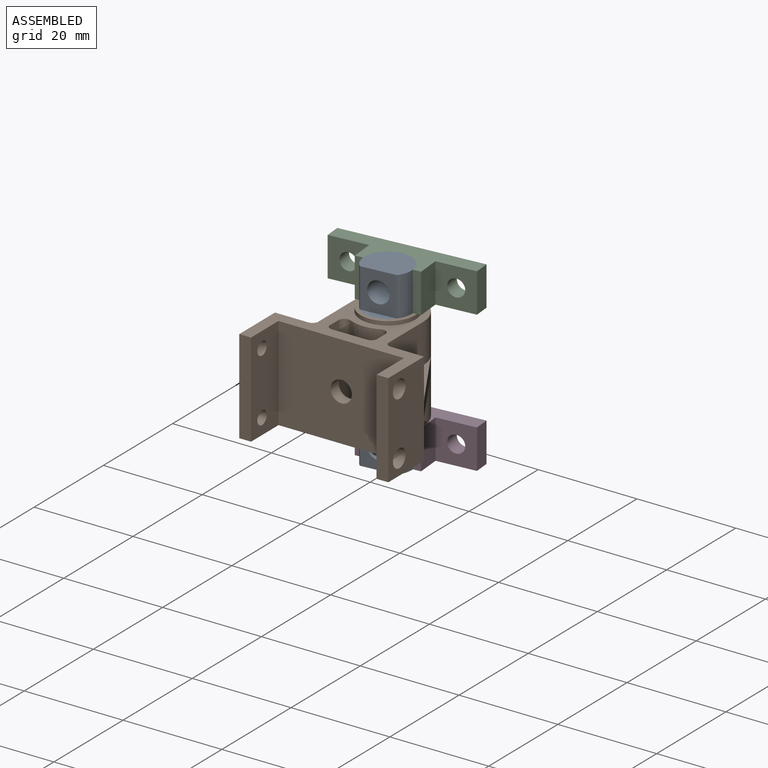
[diagram: assembled view]
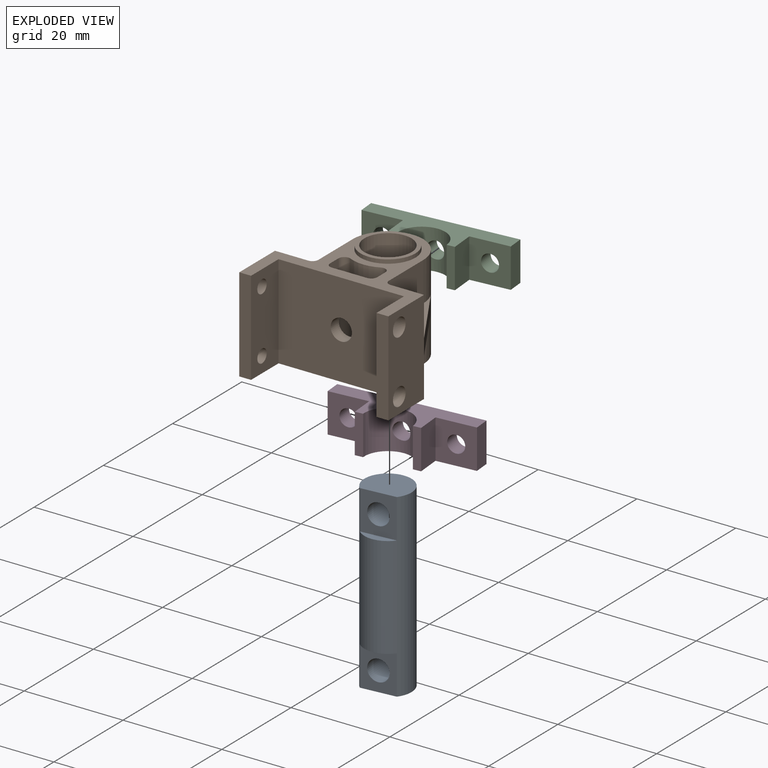
[diagram: exploded view]
GUIDED TOUR — MATED ASSEMBLY (Onshape document 30d36e8006467c0f0e39ad6a, AutoMate assembly 30d36e8006467c0f0e39ad6a_4de7a1119da5afe038f32a44_f86c3260d5e4aba58fe778c5_default)

This assembly has 4 components, labeled P0..P3 below (a component is one placed occurrence of a part; the same part can appear more than once), held together by 6 mates. A mate is a constraint between two components; its type names the relative motion it leaves free:
  CYLINDRICAL — leaves both rotation about and translation along the listed axis free,
  PLANAR — leaves sliding in the plane through the listed point (normal = the listed direction) and rotation about that normal free.
Axis/direction vectors are unit vectors and 'through' points are millimeter coordinates, both in the assembly's world frame.

MATES
  1. CYLINDRICAL "Cylindrical 2": P3 <-> P0, axis (-0.087, 0.996, 0.000) through (8.62, 1.10, 0.53) mm
  2. CYLINDRICAL "Cylindrical 5": P1 <-> P0, axis (0.000, 0.000, -1.000) through (9.15, -5.05, 4.50) mm
  3. CYLINDRICAL "Cylindrical 1": P0 <-> P3, axis (0.000, 0.000, -1.000) through (9.15, -5.05, 14.81) mm
  4. CYLINDRICAL "Cylindrical 4": P0 <-> P2, axis (0.000, 0.000, -1.000) through (9.15, -5.05, 14.81) mm
  5. CYLINDRICAL "Cylindrical 3": P2 <-> P0, axis (-0.087, 0.996, 0.000) through (8.62, 1.10, 29.10) mm
  6. PLANAR "Planar 1": P1 <-> P3, direction (0.000, 0.000, -1.000) through (9.15, -5.05, 4.50) mm

ASSEMBLY ORDER
  1. P3 — the base component [order verified]
  2. P1 [order verified]
  3. P2 [order verified]
  4. P0 [order verified]
Order-tag legend:
  [order verified] — this step's position reverses a verified removal order: the component was checked to insert without passing through the ones already placed.

Of the 4 components, 4 carry the full construction recipe — the FeatureScript program that regenerates the part's solid from scratch; the rest are supplied as boundary geometry only.
Each toured component is shown spotlighted twice — in the assembled view, then in the exploded view, where a leader line traces a displaced component back to its assembled socket (saturated green if recipe-attached, orange if geometry-only; every other component desaturated gray) — followed by its recipe or geometry summary and the mates that hold it.
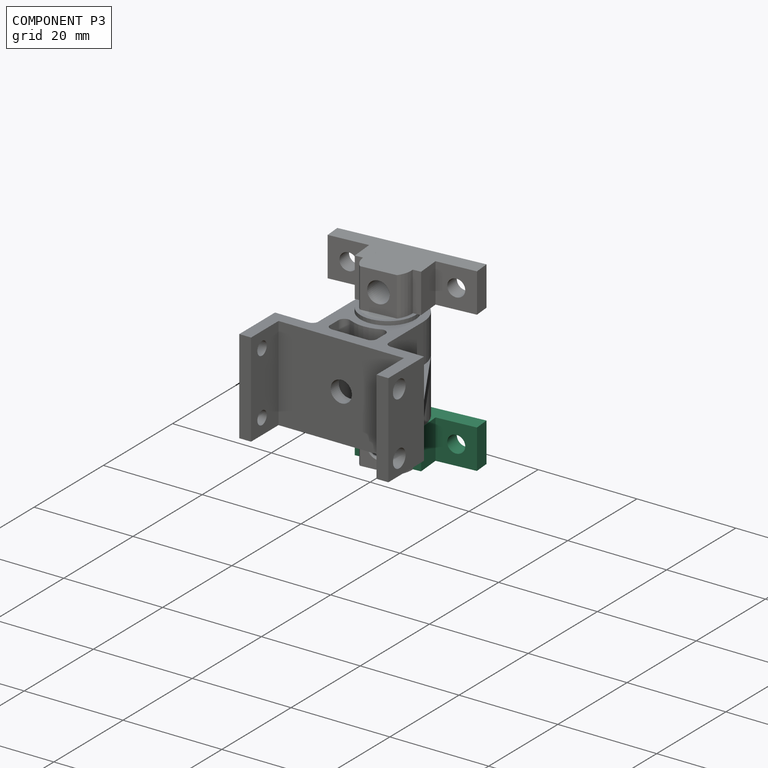
[diagram: component P3 — assembled]
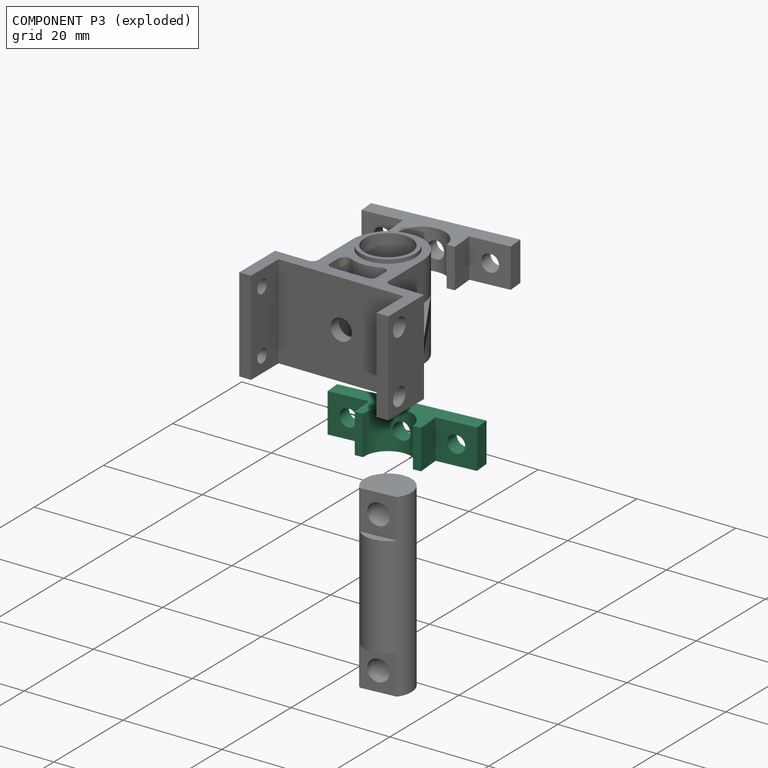
[diagram: component P3 — exploded]
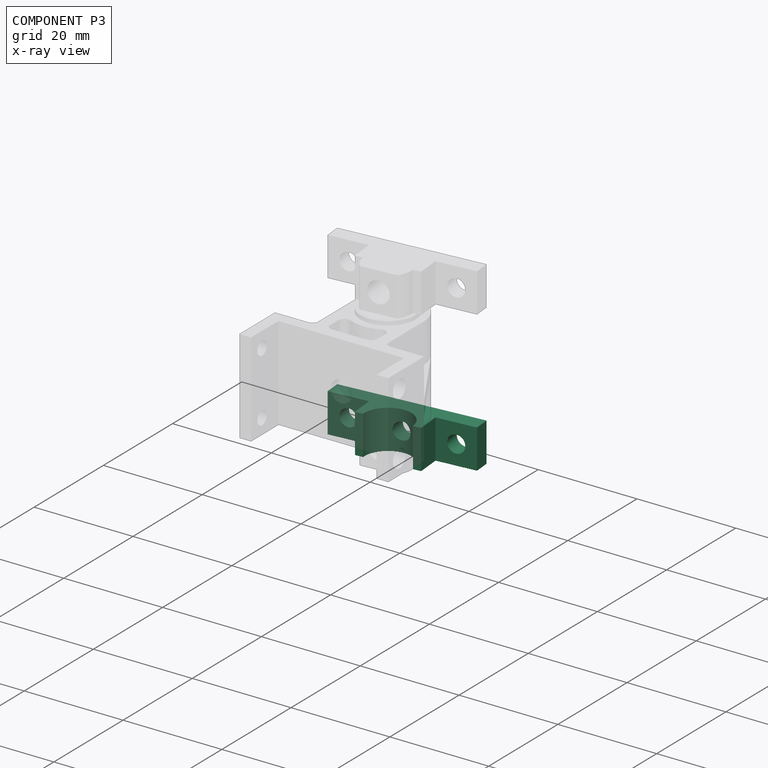
[diagram: component P3 — x-ray view]
COMPONENT P3 — same part as P2 (CADFS 00164834); its construction recipe is shown at P2.
Held by: CYLINDRICAL mate "Cylindrical 2" to P0; CYLINDRICAL mate "Cylindrical 1" to P0; PLANAR mate "Planar 1" to P1.
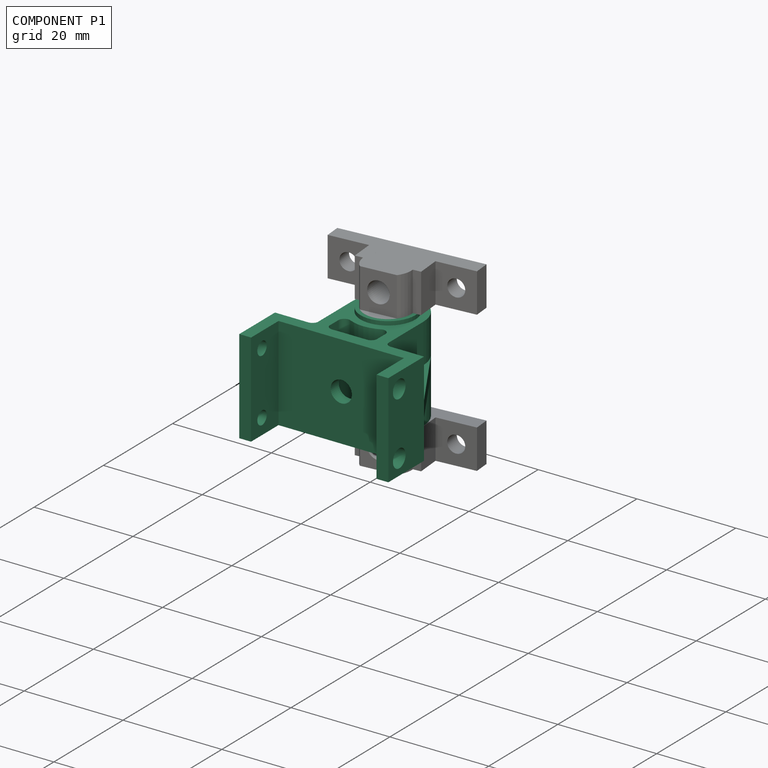
[diagram: component P1 — assembled]
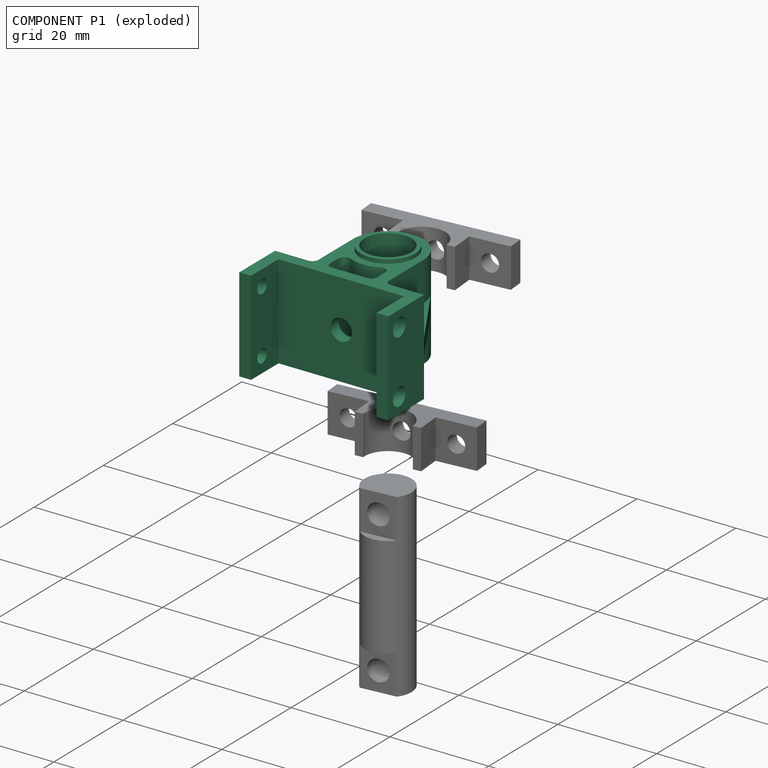
[diagram: component P1 — exploded]
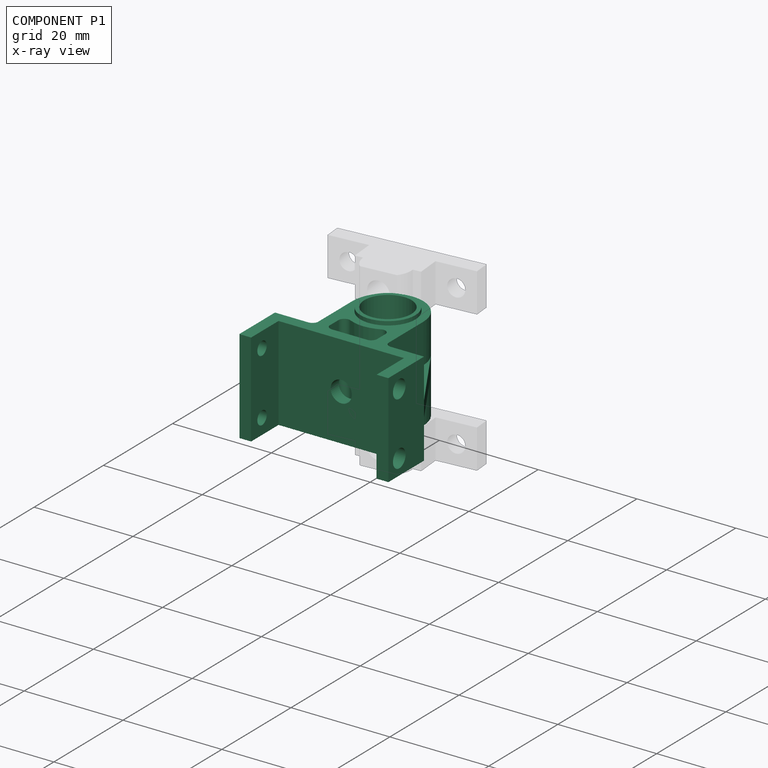
[diagram: component P1 — x-ray view]
COMPONENT P1 — recipe-attached (CADFS 00164830, mesh-verified: the recipe's output STEP matches this component's geometry to below the mesh-comparison resolution (tessellation chordal tolerance ~0.0696 mm)).
Held by: CYLINDRICAL mate "Cylindrical 5" to P0; PLANAR mate "Planar 1" to P3.
Construction recipe (FeatureScript — the CAD program that rebuilds this solid; sketch coordinates are in the units given by the * unit suffixes, e.g. mm):

FeatureScript 1511;
import(path : "onshape/std/geometry.fs", version : "1511.0");
import(path : "onshape/std/common.fs", version : "1511.0");
const mm = millimeter;
const VERTEX = EntityType.VERTEX;
const EDGE = EntityType.EDGE;
const FACE = EntityType.FACE;
const BODY = EntityType.BODY;
function v(x, y){return vector(x, y);}
function OD(order){return orderDisambiguation(order);}
function OSD(set){return originalSetDisambiguation(set);}
function TD(topology){return topologyDisambiguation(topology);}
function TDD(query){return trueDependencyDisambiguation(query);}
function sQuery(a, b, c) {return sketchEntityQuery(a, b, c);}

annotation { "Feature Type Name" : "Feature", "Feature Type Description" : "" }
export const myFeature = defineFeature(function(context is Context, id is Id, definition is map)
    precondition{}
    {
        {
            var Q0;
            Q0=qCreatedBy(makeId("Top.planeOp"),FACE);
            var sketch = newSketch(context, id + "F0", { "sketchPlane" : qUnion([Q0])});
            skArc(sketch, "E0", {"start": v(7.14, 0) * mm, "mid": v(0, 7.14) * mm, "end": v(-7.14, 0) * mm});
            skCircle(sketch, "E1", {"center": v(0, 0) * mm, "radius": 4.76 * mm});
            skLineSegment(sketch, "E2.bottom", {"start": v(12.7, -21.43) * mm, "end": v(-12.7, -21.43) * mm, "construction": true});
            skLineSegment(sketch, "E2.top", {"start": v(12.7, -13.5) * mm, "end": v(-12.7, -13.5) * mm});
            skLineSegment(sketch, "E2.left", {"start": v(12.7, -21.43) * mm, "end": v(12.7, -13.5) * mm});
            skLineSegment(sketch, "E2.right", {"start": v(-12.7, -21.43) * mm, "end": v(-12.7, -13.5) * mm});
            skLineSegment(sketch, "E3", {"start": v(12.7, -21.43) * mm, "end": v(15.08, -21.43) * mm});
            skLineSegment(sketch, "E4", {"start": v(-12.7, -21.43) * mm, "end": v(-15.08, -21.43) * mm});
            skLineSegment(sketch, "E5", {"start": v(-15.08, -21.43) * mm, "end": v(-15.08, -11.11) * mm});
            skLineSegment(sketch, "E6", {"start": v(15.08, -21.43) * mm, "end": v(15.08, -11.11) * mm});
            skLineSegment(sketch, "E7", {"start": v(-15.08, -11.11) * mm, "end": v(-7.14, -11.11) * mm});
            skLineSegment(sketch, "E8", {"start": v(-7.14, -11.11) * mm, "end": v(-7.14, 0) * mm});
            skLineSegment(sketch, "E9", {"start": v(15.08, -11.11) * mm, "end": v(7.14, -11.11) * mm});
            skLineSegment(sketch, "E10", {"start": v(7.14, -11.11) * mm, "end": v(7.14, 0) * mm});
            skLineSegment(sketch, "E11", {"start": v(-7.14, 0) * mm, "end": v(7.14, 0) * mm, "construction": true});
            skLineSegment(sketch, "E12", {"start": v(-7.14, -11.11) * mm, "end": v(7.14, -11.11) * mm, "construction": true});
            skLineSegment(sketch, "E13", {"start": v(0, -11.11) * mm, "end": v(0, -13.5) * mm, "construction": true});
            skSolve(sketch);
        }
        {
            var Q0;
            Q0=qSketchRegion(id+"F0",true);
            extrude(context, id + "F1", {"entities" : qUnion([Q0]), "depth" : 19.05 * mm});
        }
        {
            var Q0;
            Q0=makeQuery(id+"F1.opExtrude","SWEPT_FACE",FACE,{"disambiguationData":[OSD([sQuery(id+"F0.wireOp",EDGE,"E6")])]});
            var sketch = newSketch(context, id + "F2", { "sketchPlane" : qUnion([Q0])});
            skLineSegment(sketch, "E14.bottom", {"start": v(-21.43, 19.05) * mm, "end": v(-18.26, 19.05) * mm, "construction": true});
            skLineSegment(sketch, "E14.top", {"start": v(-21.43, 15.88) * mm, "end": v(-18.26, 15.88) * mm, "construction": true});
            skLineSegment(sketch, "E14.left", {"start": v(-21.43, 19.05) * mm, "end": v(-21.43, 15.88) * mm, "construction": true});
            skLineSegment(sketch, "E14.right", {"start": v(-18.26, 19.05) * mm, "end": v(-18.26, 15.88) * mm, "construction": true});
            skLineSegment(sketch, "E15.bottom", {"start": v(-21.43, 0) * mm, "end": v(-18.26, 0) * mm, "construction": true});
            skLineSegment(sketch, "E15.top", {"start": v(-21.43, 3.18) * mm, "end": v(-18.26, 3.18) * mm, "construction": true});
            skLineSegment(sketch, "E15.left", {"start": v(-21.43, 0) * mm, "end": v(-21.43, 3.18) * mm, "construction": true});
            skLineSegment(sketch, "E15.right", {"start": v(-18.26, 0) * mm, "end": v(-18.26, 3.18) * mm, "construction": true});
            skCircle(sketch, "E16", {"center": v(-18.26, 15.88) * mm, "radius": 1.83 * mm});
            skCircle(sketch, "E17", {"center": v(-18.26, 3.18) * mm, "radius": 1.83 * mm});
            skSolve(sketch);
        }
        {
            var Q0;
            Q0=qSketchRegion(id+"F2",true);
            var Q1;
            Q1=makeQuery(id+"F1.opExtrude","SWEPT_FACE",FACE,{"disambiguationData":[OSD([sQuery(id+"F0.wireOp",EDGE,"E2.left")])]});
            extrude(context, id + "F3", {"entities" : qUnion([Q0]), "operationType" : NewBodyOperationType.REMOVE, "endBound" : BoundingType.UP_TO_SURFACE, "oppositeDirection" : true, "endBoundEntityFace" : qUnion([Q1]), "depth" : 25.4 * mm});
        }
        {
            var Q0;
            Q0=makeQuery(id+"F1.opExtrude","SWEPT_FACE",FACE,{"disambiguationData":[OSD([sQuery(id+"F0.wireOp",EDGE,"E5")])]});
            var sketch = newSketch(context, id + "F4", { "sketchPlane" : qUnion([Q0])});
            skCircle(sketch, "E18", {"center": v(18.26, 3.18) * mm, "radius": 1.35 * mm});
            skCircle(sketch, "E19", {"center": v(18.26, 15.88) * mm, "radius": 1.35 * mm});
            skSolve(sketch);
        }
        {
            var Q0;
            Q0=qSketchRegion(id+"F4",true);
            var Q1;
            Q1=makeQuery(id+"F1.opExtrude","SWEPT_FACE",FACE,{"disambiguationData":[OSD([sQuery(id+"F0.wireOp",EDGE,"E2.right")])]});
            extrude(context, id + "F5", {"entities" : qUnion([Q0]), "operationType" : NewBodyOperationType.REMOVE, "endBound" : BoundingType.UP_TO_SURFACE, "oppositeDirection" : true, "endBoundEntityFace" : qUnion([Q1]), "depth" : 25.4 * mm});
        }
        {
            var Q0;
            Q0=makeQuery(id+"F1.opExtrude","CAP_FACE",FACE,{"disambiguationData":[OSD([sQuery(id+"F0.wireOp",EDGE,"E0"),sQuery(id+"F0.wireOp",EDGE,"E1"),sQuery(id+"F0.wireOp",EDGE,"E2.top"),sQuery(id+"F0.wireOp",EDGE,"E2.left"),sQuery(id+"F0.wireOp",EDGE,"E2.right"),sQuery(id+"F0.wireOp",EDGE,"E3"),sQuery(id+"F0.wireOp",EDGE,"E4"),sQuery(id+"F0.wireOp",EDGE,"E5"),sQuery(id+"F0.wireOp",EDGE,"E6"),sQuery(id+"F0.wireOp",EDGE,"E7"),sQuery(id+"F0.wireOp",EDGE,"E8"),sQuery(id+"F0.wireOp",EDGE,"E9"),sQuery(id+"F0.wireOp",EDGE,"E10")])],"isStart":true});
            cPlane(context, id + "F6", {"entities" : qUnion([Q0]), "cplaneType" : CPlaneType.OFFSET, "offset" : 9.52 * mm, "oppositeDirection" : true, "width" : 152.4 * mm, "height" : 152.4 * mm});
        }
        {
            var Q0;
            Q0=qCreatedBy(id+"F6.planeOp",FACE);
            var sketch = newSketch(context, id + "F7", { "sketchPlane" : qUnion([Q0])});
            skLineSegment(sketch, "E20", {"start": v(-6.11, -3.7) * mm, "end": v(-15.08, 11.11) * mm});
            skArc(sketch, "E21", {"start": v(-7.14, 0) * mm, "mid": v(-6.88, -1.92) * mm, "end": v(-6.11, -3.7) * mm});
            skLineSegment(sketch, "E22", {"start": v(-7.14, 0) * mm, "end": v(-7.14, 11.11) * mm});
            skLineSegment(sketch, "E23", {"start": v(-7.14, 11.11) * mm, "end": v(-15.08, 11.11) * mm});
            skArc(sketch, "E24", {"start": v(6.11, -3.7) * mm, "mid": v(6.88, -1.92) * mm, "end": v(7.14, 0) * mm});
            skLineSegment(sketch, "E25", {"start": v(7.14, 0) * mm, "end": v(7.14, 11.11) * mm});
            skLineSegment(sketch, "E26", {"start": v(7.14, 11.11) * mm, "end": v(15.08, 11.11) * mm});
            skLineSegment(sketch, "E27", {"start": v(15.08, 11.11) * mm, "end": v(6.11, -3.7) * mm});
            skSolve(sketch);
        }
        {
            var Q0;
            Q0 = qSketchRegion(id + "F7", true);
            extrude(context, id + "F8", {"entities" : qUnion([Q0]), "operationType" : NewBodyOperationType.ADD, "endBound" : BoundingType.SYMMETRIC, "depth" : 3.17 * mm});
        }
        {
            var Q0;
            Q0=makeQuery(id+"F1.opExtrude","CAP_FACE",FACE,{"disambiguationData":[OSD([sQuery(id+"F0.wireOp",EDGE,"E0"),sQuery(id+"F0.wireOp",EDGE,"E1"),sQuery(id+"F0.wireOp",EDGE,"E2.top"),sQuery(id+"F0.wireOp",EDGE,"E2.left"),sQuery(id+"F0.wireOp",EDGE,"E2.right"),sQuery(id+"F0.wireOp",EDGE,"E3"),sQuery(id+"F0.wireOp",EDGE,"E4"),sQuery(id+"F0.wireOp",EDGE,"E5"),sQuery(id+"F0.wireOp",EDGE,"E6"),sQuery(id+"F0.wireOp",EDGE,"E7"),sQuery(id+"F0.wireOp",EDGE,"E8"),sQuery(id+"F0.wireOp",EDGE,"E9"),sQuery(id+"F0.wireOp",EDGE,"E10")])],"isStart":true});
            var sketch = newSketch(context, id + "F9", { "sketchPlane" : qUnion([Q0])});
            skCircle(sketch, "E28", {"center": v(0, 0) * mm, "radius": 4.76 * mm});
            skCircle(sketch, "E29", {"center": v(0, 0) * mm, "radius": 5.56 * mm});
            skSolve(sketch);
        }
        {
            var Q0;
            Q0=makeQuery(id+"F1.opExtrude","CAP_FACE",FACE,{"disambiguationData":[OSD([sQuery(id+"F0.wireOp",EDGE,"E0"),sQuery(id+"F0.wireOp",EDGE,"E1"),sQuery(id+"F0.wireOp",EDGE,"E2.top"),sQuery(id+"F0.wireOp",EDGE,"E2.left"),sQuery(id+"F0.wireOp",EDGE,"E2.right"),sQuery(id+"F0.wireOp",EDGE,"E3"),sQuery(id+"F0.wireOp",EDGE,"E4"),sQuery(id+"F0.wireOp",EDGE,"E5"),sQuery(id+"F0.wireOp",EDGE,"E6"),sQuery(id+"F0.wireOp",EDGE,"E7"),sQuery(id+"F0.wireOp",EDGE,"E8"),sQuery(id+"F0.wireOp",EDGE,"E9"),sQuery(id+"F0.wireOp",EDGE,"E10")])],"isStart":false});
            cPlane(context, id + "F10", {"entities" : qUnion([Q0]), "cplaneType" : CPlaneType.OFFSET, "offset" : 0.8 * mm, "width" : 152.4 * mm, "height" : 152.4 * mm});
        }
        {
            var Q0;
            Q0 = qSketchRegion(id + "F9", true);
            var Q1;
            Q1=qCreatedBy(id+"F10.planeOp",FACE);
            extrude(context, id + "F11", {"entities" : qUnion([Q0]), "operationType" : NewBodyOperationType.ADD, "depth" : 0.8 * mm, "hasSecondDirection" : true, "secondDirectionBound" : SecondDirectionBoundingType.UP_TO_SURFACE, "secondDirectionOppositeDirection" : true, "secondDirectionBoundEntityFace" : qUnion([Q1]), "secondDirectionDepth" : 25.4 * mm});
        }
        {
            var Q0;
            Q0=makeQuery(id+"F1.opExtrude","SWEPT_FACE",FACE,{"disambiguationData":[OSD([sQuery(id+"F0.wireOp",EDGE,"E2.top")])]});
            var sketch = newSketch(context, id + "F12", { "sketchPlane" : qUnion([Q0])});
            skLineSegment(sketch, "E30", {"start": v(0, 19.05) * mm, "end": v(0, 0) * mm, "construction": true});
            skCircle(sketch, "E31", {"center": v(0, 9.53) * mm, "radius": 1.73 * mm});
            skSolve(sketch);
        }
        {
            var Q0;
            Q0 = qSketchRegion(id + "F12", true);
            var Q1;
            Q1=makeQuery(id+"F11.boolean.opBoolean","MERGE",FACE,{"derivedFrom":[makeQuery(id+"F1.opExtrude","SWEPT_FACE",FACE,{"disambiguationData":[OSD([sQuery(id+"F0.wireOp",EDGE,"E1")])]}),makeQuery(id+"F11.opExtrude","SWEPT_FACE",FACE,{"disambiguationData":[OSD([sQuery(id+"F9.wireOp",EDGE,"E28")])]})]});
            extrude(context, id + "F13", {"entities" : qUnion([Q0]), "operationType" : NewBodyOperationType.REMOVE, "endBound" : BoundingType.UP_TO_SURFACE, "oppositeDirection" : true, "endBoundEntityFace" : qUnion([Q1]), "depth" : 25.4 * mm});
        }
        {
            var Q0;
            Q0=makeQuery(id+"F1.opExtrude","CAP_FACE",FACE,{"disambiguationData":[OSD([sQuery(id+"F0.wireOp",EDGE,"E0"),sQuery(id+"F0.wireOp",EDGE,"E1"),sQuery(id+"F0.wireOp",EDGE,"E2.top"),sQuery(id+"F0.wireOp",EDGE,"E2.left"),sQuery(id+"F0.wireOp",EDGE,"E2.right"),sQuery(id+"F0.wireOp",EDGE,"E3"),sQuery(id+"F0.wireOp",EDGE,"E4"),sQuery(id+"F0.wireOp",EDGE,"E5"),sQuery(id+"F0.wireOp",EDGE,"E6"),sQuery(id+"F0.wireOp",EDGE,"E7"),sQuery(id+"F0.wireOp",EDGE,"E8"),sQuery(id+"F0.wireOp",EDGE,"E9"),sQuery(id+"F0.wireOp",EDGE,"E10")])],"isStart":false});
            var sketch = newSketch(context, id + "F14", { "sketchPlane" : qUnion([Q0])});
            skLineSegment(sketch, "E32.bottom", {"start": v(-4.76, -11.11) * mm, "end": v(4.76, -11.11) * mm});
            skLineSegment(sketch, "E32.top", {"start": v(-4.76, -5.32) * mm, "end": v(4.76, -5.32) * mm, "construction": true});
            skLineSegment(sketch, "E32.left", {"start": v(-4.76, -11.11) * mm, "end": v(-4.76, -5.32) * mm});
            skLineSegment(sketch, "E32.right", {"start": v(4.76, -11.11) * mm, "end": v(4.76, -5.32) * mm});
            skLineSegment(sketch, "E33", {"start": v(0, -11.11) * mm, "end": v(0, -13.5) * mm, "construction": true});
            skLineSegment(sketch, "E34", {"start": v(4.76, -11.11) * mm, "end": v(7.14, -11.11) * mm, "construction": true});
            skArc(sketch, "E35", {"start": v(-4.76, -5.32) * mm, "mid": v(0, -7.14) * mm, "end": v(4.76, -5.32) * mm});
            skSolve(sketch);
        }
        {
            var Q0;
            Q0 = qSketchRegion(id + "F14", true);
            var Q1;
            Q1=makeQuery(id+"F1.opExtrude","CAP_FACE",FACE,{"disambiguationData":[OSD([sQuery(id+"F0.wireOp",EDGE,"E0"),sQuery(id+"F0.wireOp",EDGE,"E1"),sQuery(id+"F0.wireOp",EDGE,"E2.top"),sQuery(id+"F0.wireOp",EDGE,"E2.left"),sQuery(id+"F0.wireOp",EDGE,"E2.right"),sQuery(id+"F0.wireOp",EDGE,"E3"),sQuery(id+"F0.wireOp",EDGE,"E4"),sQuery(id+"F0.wireOp",EDGE,"E5"),sQuery(id+"F0.wireOp",EDGE,"E6"),sQuery(id+"F0.wireOp",EDGE,"E7"),sQuery(id+"F0.wireOp",EDGE,"E8"),sQuery(id+"F0.wireOp",EDGE,"E9"),sQuery(id+"F0.wireOp",EDGE,"E10")])],"isStart":true});
            extrude(context, id + "F15", {"entities" : qUnion([Q0]), "operationType" : NewBodyOperationType.REMOVE, "endBound" : BoundingType.UP_TO_SURFACE, "oppositeDirection" : true, "endBoundEntityFace" : qUnion([Q1]), "depth" : 25.4 * mm});
        }
        {
            var Q0;
            Q0=makeQuery(id+"F1.opExtrude","SWEPT_FACE",FACE,{"disambiguationData":[OSD([sQuery(id+"F0.wireOp",EDGE,"E2.top")])]});
            var sketch = newSketch(context, id + "F16", { "sketchPlane" : qUnion([Q0])});
            skCircle(sketch, "E36", {"center": v(0, 9.53) * mm, "radius": 2.15 * mm});
            skSolve(sketch);
        }
        {
            var Q0;
            Q0 = qSketchRegion(id + "F16", true);
            var Q1;
            Q1=makeQuery(id+"F15.boolean.opBoolean","COPY",FACE,{"derivedFrom":makeQuery(id+"F15.opExtrude","SWEPT_FACE",FACE,{"disambiguationData":[OSD([sQuery(id+"F14.wireOp",EDGE,"E32.bottom")])]})});
            extrude(context, id + "F17", {"entities" : qUnion([Q0]), "operationType" : NewBodyOperationType.REMOVE, "endBound" : BoundingType.UP_TO_SURFACE, "oppositeDirection" : true, "endBoundEntityFace" : qUnion([Q1]), "depth" : 25.4 * mm});
        }
        {
            var Q0;
            {var subQ0=sQuery(id+"F0.wireOp",EDGE,"E10");var subQ1=sQuery(id+"F0.wireOp",EDGE,"E9");Q0=makeQuery(id+"F8.boolean.opBoolean","SPLIT",EDGE,{"disambiguationData":[TD([makeQuery(id+"F8.opExtrude","CAP_FACE",FACE,{"disambiguationData":[OSD([sQuery(id+"F7.wireOp",EDGE,"E24"),sQuery(id+"F7.wireOp",EDGE,"E25"),sQuery(id+"F7.wireOp",EDGE,"E26"),sQuery(id+"F7.wireOp",EDGE,"E27")])],"isStart":true})])],"derivedFrom":makeQuery(id+"F1.opExtrude","SWEPT_EDGE",EDGE,{"disambiguationData":[OSD([subQ1,subQ0])]})});}
            var Q1;
            {var subQ0=sQuery(id+"F0.wireOp",EDGE,"E10");var subQ1=sQuery(id+"F0.wireOp",EDGE,"E9");Q1=makeQuery(id+"F8.boolean.opBoolean","SPLIT",EDGE,{"disambiguationData":[TD([makeQuery(id+"F8.opExtrude","CAP_FACE",FACE,{"disambiguationData":[OSD([sQuery(id+"F7.wireOp",EDGE,"E24"),sQuery(id+"F7.wireOp",EDGE,"E25"),sQuery(id+"F7.wireOp",EDGE,"E26"),sQuery(id+"F7.wireOp",EDGE,"E27")])],"isStart":false})])],"derivedFrom":makeQuery(id+"F1.opExtrude","SWEPT_EDGE",EDGE,{"disambiguationData":[OSD([subQ1,subQ0])]})});}
            var Q2;
            {var subQ0=sQuery(id+"F0.wireOp",EDGE,"E8");var subQ1=sQuery(id+"F0.wireOp",EDGE,"E7");Q2=makeQuery(id+"F8.boolean.opBoolean","SPLIT",EDGE,{"disambiguationData":[TD([makeQuery(id+"F8.opExtrude","CAP_FACE",FACE,{"disambiguationData":[OSD([sQuery(id+"F7.wireOp",EDGE,"E20"),sQuery(id+"F7.wireOp",EDGE,"E21"),sQuery(id+"F7.wireOp",EDGE,"E22"),sQuery(id+"F7.wireOp",EDGE,"E23")])],"isStart":true})])],"derivedFrom":makeQuery(id+"F1.opExtrude","SWEPT_EDGE",EDGE,{"disambiguationData":[OSD([subQ1,subQ0])]})});}
            var Q3;
            {var subQ0=sQuery(id+"F0.wireOp",EDGE,"E8");var subQ1=sQuery(id+"F0.wireOp",EDGE,"E7");Q3=makeQuery(id+"F8.boolean.opBoolean","SPLIT",EDGE,{"disambiguationData":[TD([makeQuery(id+"F8.opExtrude","CAP_FACE",FACE,{"disambiguationData":[OSD([sQuery(id+"F7.wireOp",EDGE,"E20"),sQuery(id+"F7.wireOp",EDGE,"E21"),sQuery(id+"F7.wireOp",EDGE,"E22"),sQuery(id+"F7.wireOp",EDGE,"E23")])],"isStart":false})])],"derivedFrom":makeQuery(id+"F1.opExtrude","SWEPT_EDGE",EDGE,{"disambiguationData":[OSD([subQ1,subQ0])]})});}
            var Q4;
            Q4=makeQuery(id+"F15.boolean.opBoolean","COPY",EDGE,{"derivedFrom":makeQuery(id+"F15.opExtrude","SWEPT_EDGE",EDGE,{"disambiguationData":[OSD([sQuery(id+"F14.wireOp",EDGE,"E32.bottom"),sQuery(id+"F14.wireOp",EDGE,"E32.left")])]})});
            var Q5;
            Q5=makeQuery(id+"F15.boolean.opBoolean","COPY",EDGE,{"derivedFrom":makeQuery(id+"F15.opExtrude","SWEPT_EDGE",EDGE,{"disambiguationData":[OSD([sQuery(id+"F14.wireOp",EDGE,"E32.bottom"),sQuery(id+"F14.wireOp",EDGE,"E32.right")])]})});
            var Q6;
            Q6=makeQuery(id+"F15.boolean.opBoolean","COPY",EDGE,{"derivedFrom":makeQuery(id+"F15.opExtrude","SWEPT_EDGE",EDGE,{"disambiguationData":[OSD([sQuery(id+"F14.wireOp",EDGE,"E32.right"),sQuery(id+"F14.wireOp",EDGE,"E35")])]})});
            var Q7;
            Q7=makeQuery(id+"F15.boolean.opBoolean","COPY",EDGE,{"derivedFrom":makeQuery(id+"F15.opExtrude","SWEPT_EDGE",EDGE,{"disambiguationData":[OSD([sQuery(id+"F14.wireOp",EDGE,"E32.left"),sQuery(id+"F14.wireOp",EDGE,"E35")])]})});
            fillet(context, id + "F18", {"entities" : qUnion([Q0, Q1, Q2, Q3, Q4, Q5, Q6, Q7]), "radius" : 1.2 * mm, "tangentPropagation" : true, "allowEdgeOverflow" : false});
        }
    });
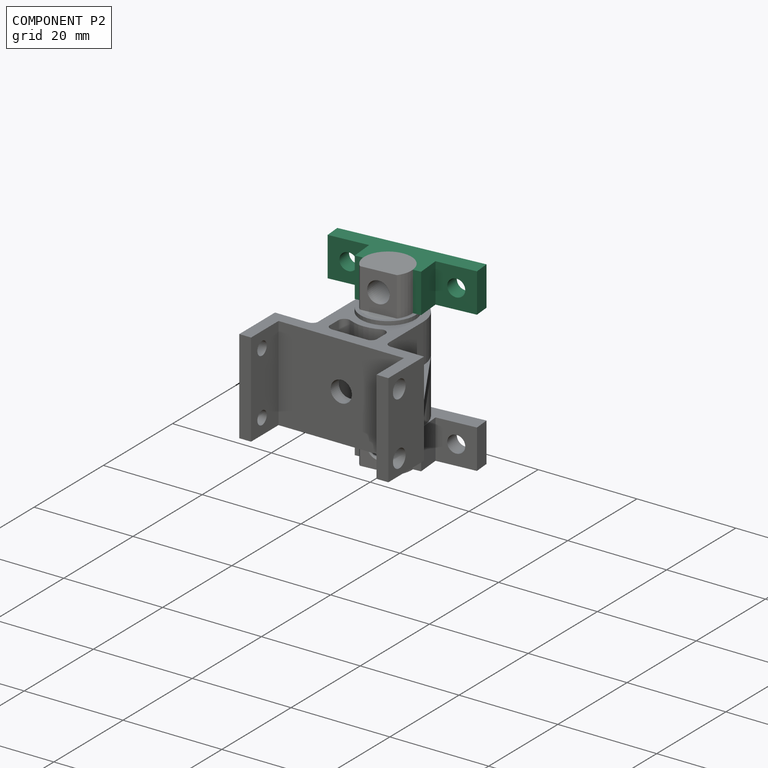
[diagram: component P2 — assembled]
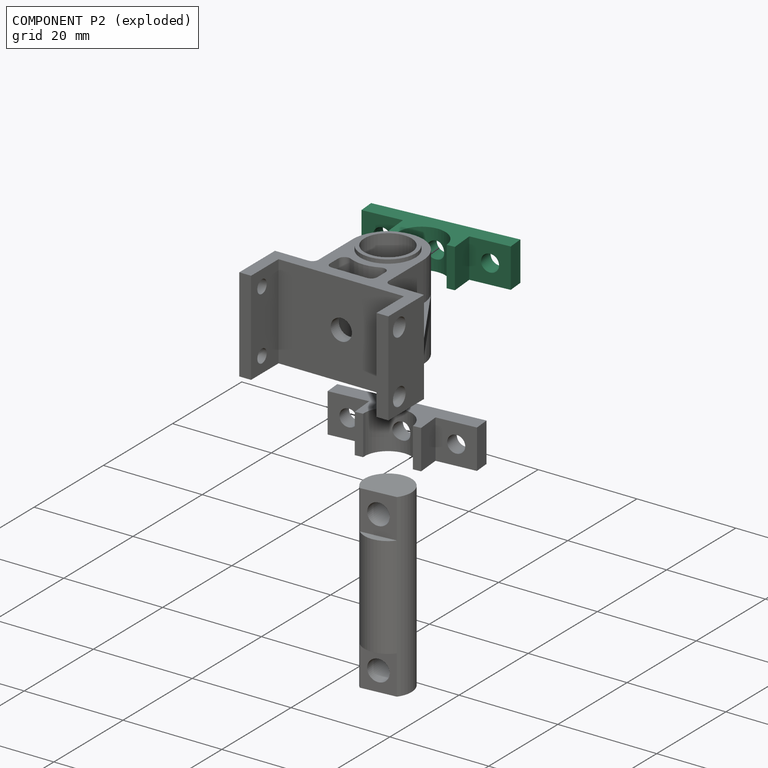
[diagram: component P2 — exploded]
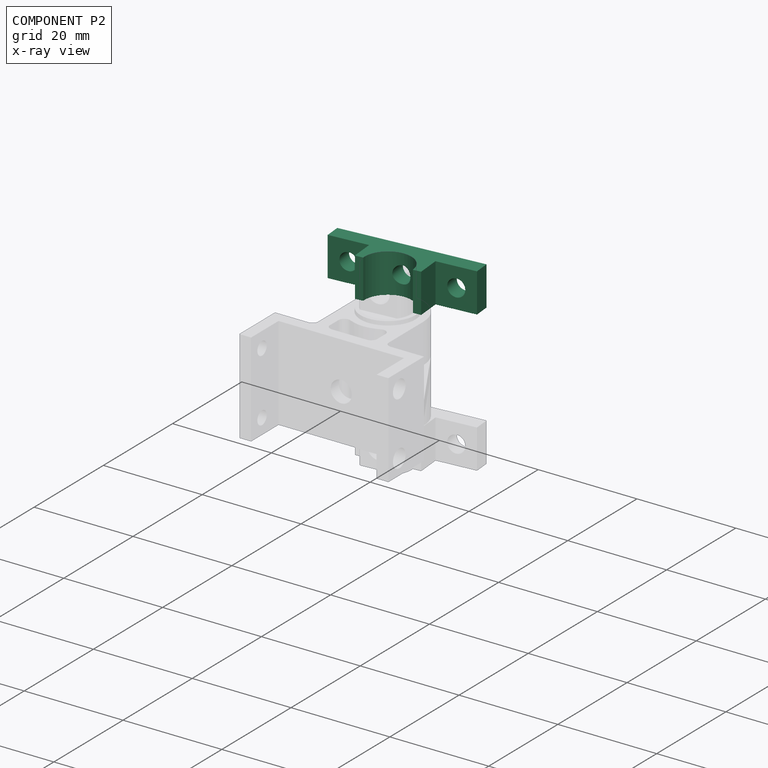
[diagram: component P2 — x-ray view]
COMPONENT P2 — recipe-attached (CADFS 00164834, mesh-verified: the recipe's output STEP matches this component's geometry to below the mesh-comparison resolution (tessellation chordal tolerance ~0.0461 mm)).
Held by: CYLINDRICAL mate "Cylindrical 4" to P0; CYLINDRICAL mate "Cylindrical 3" to P0.
Construction recipe (FeatureScript — the CAD program that rebuilds this solid; sketch coordinates are in the units given by the * unit suffixes, e.g. mm):

FeatureScript 1511;
import(path : "onshape/std/geometry.fs", version : "1511.0");
import(path : "onshape/std/common.fs", version : "1511.0");
const mm = millimeter;
const VERTEX = EntityType.VERTEX;
const EDGE = EntityType.EDGE;
const FACE = EntityType.FACE;
const BODY = EntityType.BODY;
function v(x, y){return vector(x, y);}
function OD(order){return orderDisambiguation(order);}
function OSD(set){return originalSetDisambiguation(set);}
function TD(topology){return topologyDisambiguation(topology);}
function TDD(query){return trueDependencyDisambiguation(query);}
function sQuery(a, b, c) {return sketchEntityQuery(a, b, c);}

annotation { "Feature Type Name" : "Feature", "Feature Type Description" : "" }
export const myFeature = defineFeature(function(context is Context, id is Id, definition is map)
    precondition{}
    {
        {
            var Q0;
            Q0=qCreatedBy(makeId("Top.planeOp"),FACE);
            var sketch = newSketch(context, id + "F0", { "sketchPlane" : qUnion([Q0])});
            skLineSegment(sketch, "E0", {"start": v(0, 0) * mm, "end": v(9.53, 0) * mm, "construction": true});
            skArc(sketch, "E1", {"start": v(9.53, 0) * mm, "mid": v(4.76, 4.76) * mm, "end": v(0, 0) * mm});
            skLineSegment(sketch, "E2", {"start": v(0, 0) * mm, "end": v(-1.59, 0) * mm});
            skLineSegment(sketch, "E3", {"start": v(-1.59, 0) * mm, "end": v(-1.59, 4.76) * mm});
            skLineSegment(sketch, "E4", {"start": v(-1.59, 4.76) * mm, "end": v(-9.53, 4.76) * mm});
            skLineSegment(sketch, "E5", {"start": v(-9.53, 4.76) * mm, "end": v(-9.53, 7.94) * mm});
            skLineSegment(sketch, "E6", {"start": v(-9.53, 7.94) * mm, "end": v(19.05, 7.94) * mm});
            skLineSegment(sketch, "E7", {"start": v(19.05, 7.94) * mm, "end": v(19.05, 4.76) * mm});
            skLineSegment(sketch, "E8", {"start": v(19.05, 4.76) * mm, "end": v(11.11, 4.76) * mm});
            skLineSegment(sketch, "E9", {"start": v(11.11, 4.76) * mm, "end": v(11.11, 0) * mm});
            skLineSegment(sketch, "E10", {"start": v(11.11, 0) * mm, "end": v(9.53, 0) * mm});
            skSolve(sketch);
        }
        {
            var Q0;
            Q0 = qSketchRegion(id + "F0", true);
            extrude(context, id + "F1", {"entities" : qUnion([Q0]), "depth" : 7.94 * mm});
        }
        {
            var Q0;
            Q0=makeQuery(id+"F1.opExtrude","SWEPT_FACE",FACE,{"disambiguationData":[OSD([sQuery(id+"F0.wireOp",EDGE,"E6")])]});
            var sketch = newSketch(context, id + "F2", { "sketchPlane" : qUnion([Q0])});
            skLineSegment(sketch, "E11.bottom", {"start": v(9.53, 3.97) * mm, "end": v(5.56, 3.97) * mm, "construction": true});
            skLineSegment(sketch, "E11.top", {"start": v(9.53, 7.94) * mm, "end": v(5.56, 7.94) * mm, "construction": true});
            skLineSegment(sketch, "E11.left", {"start": v(9.53, 3.97) * mm, "end": v(9.53, 7.94) * mm, "construction": true});
            skLineSegment(sketch, "E11.right", {"start": v(5.56, 3.97) * mm, "end": v(5.56, 7.94) * mm, "construction": true});
            skLineSegment(sketch, "E12.bottom", {"start": v(-19.05, 3.97) * mm, "end": v(-15.08, 3.97) * mm, "construction": true});
            skLineSegment(sketch, "E12.top", {"start": v(-19.05, 7.94) * mm, "end": v(-15.08, 7.94) * mm, "construction": true});
            skLineSegment(sketch, "E12.left", {"start": v(-19.05, 3.97) * mm, "end": v(-19.05, 7.94) * mm, "construction": true});
            skLineSegment(sketch, "E12.right", {"start": v(-15.08, 3.97) * mm, "end": v(-15.08, 7.94) * mm, "construction": true});
            skLineSegment(sketch, "E13", {"start": v(-4.76, 0) * mm, "end": v(-4.76, 7.94) * mm, "construction": true});
            skCircle(sketch, "E14", {"center": v(5.56, 3.97) * mm, "radius": 1.73 * mm});
            skCircle(sketch, "E15", {"center": v(-15.08, 3.97) * mm, "radius": 1.73 * mm});
            skCircle(sketch, "E16", {"center": v(-4.76, 3.97) * mm, "radius": 1.73 * mm});
            skSolve(sketch);
        }
        {
            var Q0;
            Q0 = qSketchRegion(id + "F2", true);
            var Q1;
            Q1=makeQuery(id+"F1.opExtrude","SWEPT_FACE",FACE,{"disambiguationData":[OSD([sQuery(id+"F0.wireOp",EDGE,"E2")])]});
            extrude(context, id + "F3", {"entities" : qUnion([Q0]), "operationType" : NewBodyOperationType.REMOVE, "endBound" : BoundingType.UP_TO_SURFACE, "oppositeDirection" : true, "endBoundEntityFace" : qUnion([Q1]), "depth" : 25.4 * mm});
        }
    });
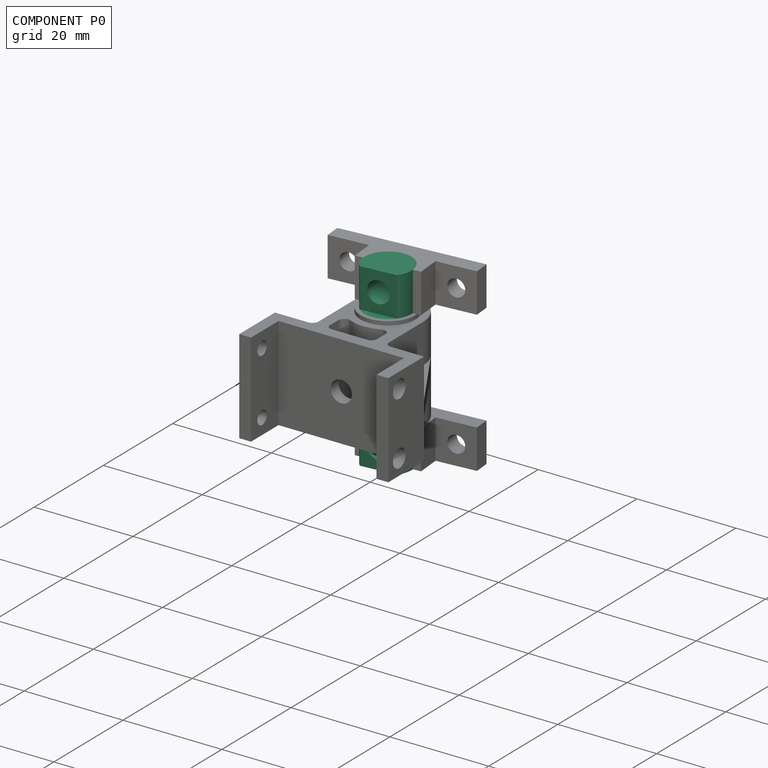
[diagram: component P0 — assembled]
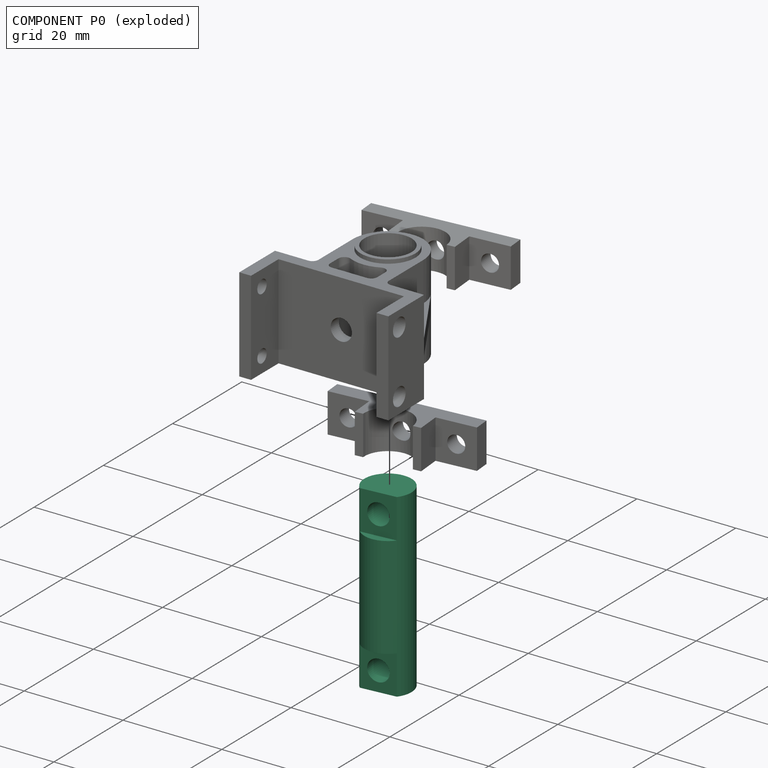
[diagram: component P0 — exploded]
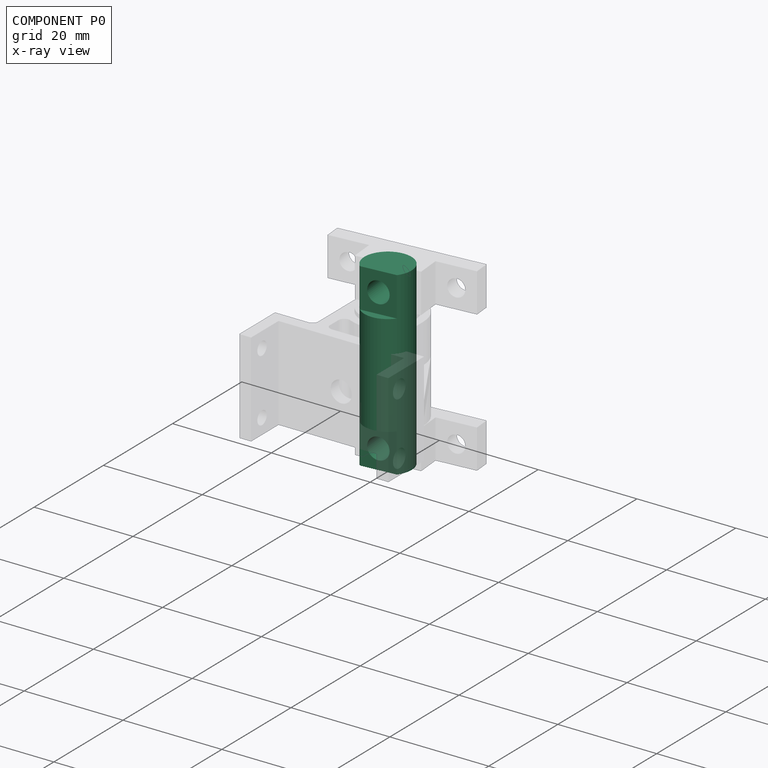
[diagram: component P0 — x-ray view]
COMPONENT P0 — recipe-attached (CADFS 00164835, mesh-verified: the recipe's output STEP matches this component's geometry to below the mesh-comparison resolution (tessellation chordal tolerance ~0.0584 mm)).
Held by: CYLINDRICAL mate "Cylindrical 2" to P3; CYLINDRICAL mate "Cylindrical 5" to P1; CYLINDRICAL mate "Cylindrical 1" to P3; CYLINDRICAL mate "Cylindrical 4" to P2; CYLINDRICAL mate "Cylindrical 3" to P2.
Construction recipe (FeatureScript — the CAD program that rebuilds this solid; sketch coordinates are in the units given by the * unit suffixes, e.g. mm):

FeatureScript 1511;
import(path : "onshape/std/geometry.fs", version : "1511.0");
import(path : "onshape/std/common.fs", version : "1511.0");
const mm = millimeter;
const VERTEX = EntityType.VERTEX;
const EDGE = EntityType.EDGE;
const FACE = EntityType.FACE;
const BODY = EntityType.BODY;
function v(x, y){return vector(x, y);}
function OD(order){return orderDisambiguation(order);}
function OSD(set){return originalSetDisambiguation(set);}
function TD(topology){return topologyDisambiguation(topology);}
function TDD(query){return trueDependencyDisambiguation(query);}
function sQuery(a, b, c) {return sketchEntityQuery(a, b, c);}

annotation { "Feature Type Name" : "Feature", "Feature Type Description" : "" }
export const myFeature = defineFeature(function(context is Context, id is Id, definition is map)
    precondition{}
    {
        {
            var Q0;
            Q0=qCreatedBy(makeId("Top.planeOp"),FACE);
            var sketch = newSketch(context, id + "F0", { "sketchPlane" : qUnion([Q0])});
            skCircle(sketch, "E0", {"center": v(0, 0) * mm, "radius": 4.76 * mm});
            skSolve(sketch);
        }
        {
            var Q0;
            Q0 = qSketchRegion(id + "F0", true);
            extrude(context, id + "F1", {"entities" : qUnion([Q0]), "depth" : 36.5 * mm});
        }
        {
            var Q0;
            Q0=makeQuery(id+"F1.opExtrude","CAP_FACE",FACE,{"disambiguationData":[OSD([sQuery(id+"F0.wireOp",EDGE,"E0")])],"isStart":false});
            var sketch = newSketch(context, id + "F2", { "sketchPlane" : qUnion([Q0])});
            skLineSegment(sketch, "E1.bottom", {"start": v(-3.55, -3.17) * mm, "end": v(3.55, -3.17) * mm});
            skLineSegment(sketch, "E1.top", {"start": v(-3.55, -4.76) * mm, "end": v(3.55, -4.76) * mm});
            skLineSegment(sketch, "E1.left", {"start": v(-3.55, -4.76) * mm, "end": v(-3.55, -3.17) * mm});
            skLineSegment(sketch, "E1.right", {"start": v(3.55, -4.76) * mm, "end": v(3.55, -3.17) * mm});
            skSolve(sketch);
        }
        {
            var Q0;
            Q0 = qSketchRegion(id + "F2", true);
            extrude(context, id + "F3", {"entities" : qUnion([Q0]), "operationType" : NewBodyOperationType.REMOVE, "oppositeDirection" : true, "depth" : 7.94 * mm});
        }
        {
            var Q0;
            Q0=makeQuery(id+"F1.opExtrude","CAP_FACE",FACE,{"disambiguationData":[OSD([sQuery(id+"F0.wireOp",EDGE,"E0")])],"isStart":true});
            var sketch = newSketch(context, id + "F4", { "sketchPlane" : qUnion([Q0])});
            skLineSegment(sketch, "E2.bottom", {"start": v(-3.55, 3.17) * mm, "end": v(3.55, 3.17) * mm});
            skLineSegment(sketch, "E2.top", {"start": v(-3.55, 4.76) * mm, "end": v(3.55, 4.76) * mm});
            skLineSegment(sketch, "E2.left", {"start": v(-3.55, 3.17) * mm, "end": v(-3.55, 4.76) * mm});
            skLineSegment(sketch, "E2.right", {"start": v(3.55, 3.17) * mm, "end": v(3.55, 4.76) * mm});
            skSolve(sketch);
        }
        {
            var Q0;
            Q0 = qSketchRegion(id + "F4", true);
            extrude(context, id + "F5", {"entities" : qUnion([Q0]), "operationType" : NewBodyOperationType.REMOVE, "oppositeDirection" : true, "depth" : 7.94 * mm});
        }
        {
            var Q0;
            Q0=makeQuery(id+"F5.boolean.opBoolean","COPY",FACE,{"derivedFrom":makeQuery(id+"F5.opExtrude","SWEPT_FACE",FACE,{"disambiguationData":[OSD([sQuery(id+"F4.wireOp",EDGE,"E2.bottom")])]})});
            var sketch = newSketch(context, id + "F6", { "sketchPlane" : qUnion([Q0])});
            skLineSegment(sketch, "E3", {"start": v(3.55, 32.54) * mm, "end": v(-3.55, 32.54) * mm, "construction": true});
            skCircle(sketch, "E4", {"center": v(0, 32.54) * mm, "radius": 2.15 * mm});
            skLineSegment(sketch, "E5", {"start": v(3.55, 3.97) * mm, "end": v(-3.55, 3.97) * mm, "construction": true});
            skCircle(sketch, "E6", {"center": v(0, 3.97) * mm, "radius": 2.15 * mm});
            skSolve(sketch);
        }
        {
            var Q0;
            Q0 = qSketchRegion(id + "F6", true);
            var Q1;
            Q1=makeQuery(id+"F1.opExtrude","SWEPT_FACE",FACE,{"disambiguationData":[OSD([sQuery(id+"F0.wireOp",EDGE,"E0")])]});
            extrude(context, id + "F7", {"entities" : qUnion([Q0]), "operationType" : NewBodyOperationType.REMOVE, "endBound" : BoundingType.UP_TO_SURFACE, "oppositeDirection" : true, "endBoundEntityFace" : qUnion([Q1]), "depth" : 25.4 * mm});
        }
    });
PROVENANCE & LICENSES
Assembly (occurrences, transforms, mates, per-part STEP geometry): AutoMate dataset, Zenodo record 7776208, CC0.
Construction recipes: CADFS (HuggingFace VladPyatov/CADFS, CC-BY-4.0, layered over the ABC dataset), FeatureScript reconstruction programs keyed by ABC model id.
Join: ABC meta listings map ABC model id -> Onshape documentId; within a shared document, parts are matched by geometric signature (bounding-box dims + volume at 0.1% relative tolerance, exact B-rep face/solid counts).
Verification: 4 of this assembly's 4 components carry a recipe attachment, and every attachment is mesh-verified: the CADFS STEP and the AutoMate member STEP were compared as meshes in their shared local frame (symmetric sampled-point-to-mesh distance); worst across the 4 attachments: below the mesh-comparison resolution (tessellation chordal tolerance ~0.0696 mm) on a 46 mm part.
Renders: orthographic iso camera (az 35 / el 25); the floor grid conveys scale (grid pitch printed in each image; no ruler). In the exploded view each component is displaced by its stored offset vector: the offsets alone carry the explosion direction (mate normal/axis signs are not orientation cues and do not encode it), and separation distances are assigned per mate-chain, not proportionally to assembly-order depth.
